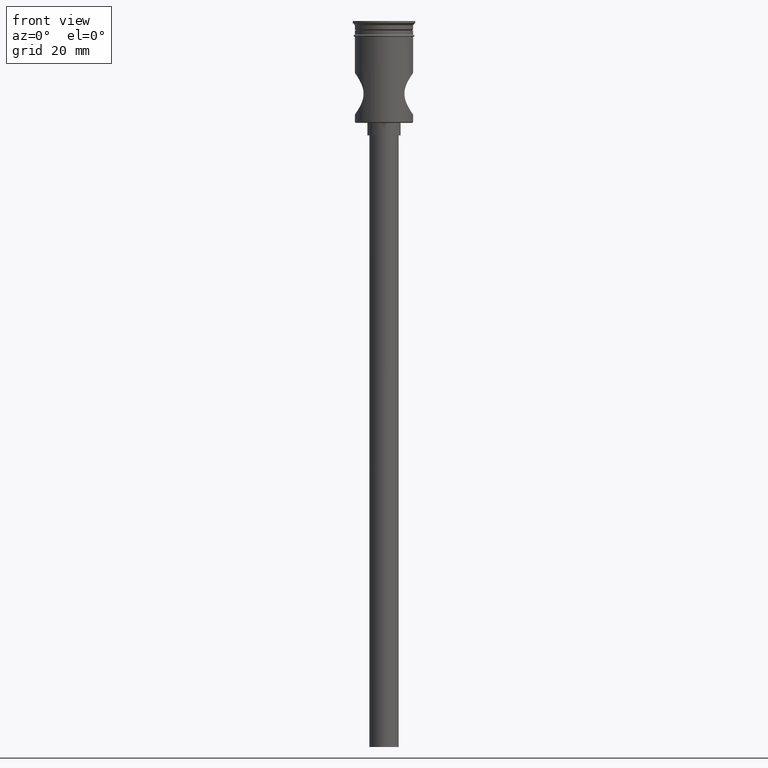
[diagram: clean part render]
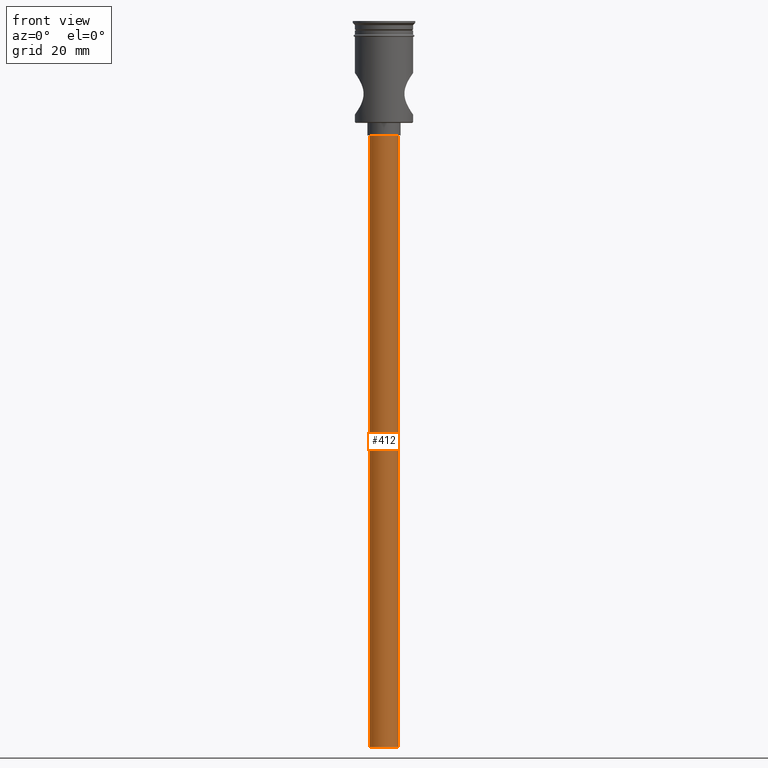
[diagram: same view with one face highlighted and labeled with its STEP entity id]
A machine part, front view. The second image highlights one B-rep face of the part: STEP entity #412.
In plain terms, the highlighted cylindrical surface (edge-blend (fillet) strip) has radius 3.5 mm, axis along (-0, -0, 1).
Its self-contained STEP definition (entity closure, byte-faithful):
#127 = CARTESIAN_POINT ( 'NONE',  ( -3.500000000000000444, 4.286263797015737088E-16, -174.5000000000000000 ) ) ;
#167 = CARTESIAN_POINT ( 'NONE',  ( -3.500000000000000444, 4.286263797015737088E-16, -174.5000000000000000 ) ) ;
#197 = DIRECTION ( 'NONE',  ( 0.000000000000000000, 0.000000000000000000, -1.000000000000000000 ) ) ;
#202 = LINE ( 'NONE', #167, #1262 ) ;
#259 = AXIS2_PLACEMENT_3D ( 'NONE', #1313, #869, #1213 ) ;
#385 = CYLINDRICAL_SURFACE ( 'NONE', #259, 3.500000000000000444 ) ;
#389 = CARTESIAN_POINT ( 'NONE',  ( 3.500000000000000444, 0.000000000000000000, -27.50000000000000000 ) ) ;
#412 = ADVANCED_FACE ( 'NONE', ( #1182 ), #385, .T. ) ;
#437 = EDGE_CURVE ( 'NONE', #819, #668, #452, .T. ) ;
#452 = CIRCLE ( 'NONE', #718, 3.500000000000000444 ) ;
#455 = VERTEX_POINT ( 'NONE', #758 ) ;
#461 = EDGE_CURVE ( 'NONE', #455, #819, #659, .T. ) ;
#471 = EDGE_CURVE ( 'NONE', #455, #1179, #478, .T. ) ;
#478 = CIRCLE ( 'NONE', #620, 3.500000000000000444 ) ;
#519 = DIRECTION ( 'NONE',  ( -0.000000000000000000, -0.000000000000000000, 1.000000000000000000 ) ) ;
#527 = DIRECTION ( 'NONE',  ( -1.000000000000000000, 0.000000000000000000, 0.000000000000000000 ) ) ;
#533 = CARTESIAN_POINT ( 'NONE',  ( 0.000000000000000000, 0.000000000000000000, -174.5000000000000000 ) ) ;
#620 = AXIS2_PLACEMENT_3D ( 'NONE', #533, #197, #967 ) ;
#659 = LINE ( 'NONE', #1423, #1289 ) ;
#668 = VERTEX_POINT ( 'NONE', #733 ) ;
#718 = AXIS2_PLACEMENT_3D ( 'NONE', #1332, #778, #527 ) ;
#733 = CARTESIAN_POINT ( 'NONE',  ( -3.500000000000000444, 4.286263797015737088E-16, -27.50000000000000000 ) ) ;
#734 = ORIENTED_EDGE ( 'NONE', *, *, #471, .F. ) ;
#758 = CARTESIAN_POINT ( 'NONE',  ( 3.500000000000000444, 0.000000000000000000, -174.5000000000000000 ) ) ;
#778 = DIRECTION ( 'NONE',  ( 0.000000000000000000, 0.000000000000000000, -1.000000000000000000 ) ) ;
#819 = VERTEX_POINT ( 'NONE', #389 ) ;
#825 = ORIENTED_EDGE ( 'NONE', *, *, #461, .T. ) ;
#869 = DIRECTION ( 'NONE',  ( -0.000000000000000000, -0.000000000000000000, 1.000000000000000000 ) ) ;
#967 = DIRECTION ( 'NONE',  ( -1.000000000000000000, 0.000000000000000000, 0.000000000000000000 ) ) ;
#1101 = ORIENTED_EDGE ( 'NONE', *, *, #437, .T. ) ;
#1106 = EDGE_LOOP ( 'NONE', ( #1485, #734, #825, #1101 ) ) ;
#1179 = VERTEX_POINT ( 'NONE', #127 ) ;
#1182 = FACE_OUTER_BOUND ( 'NONE', #1106, .T. ) ;
#1213 = DIRECTION ( 'NONE',  ( 1.000000000000000000, 0.000000000000000000, 0.000000000000000000 ) ) ;
#1226 = DIRECTION ( 'NONE',  ( -0.000000000000000000, -0.000000000000000000, 1.000000000000000000 ) ) ;
#1262 = VECTOR ( 'NONE', #519, 1000.000000000000000 ) ;
#1289 = VECTOR ( 'NONE', #1226, 1000.000000000000000 ) ;
#1313 = CARTESIAN_POINT ( 'NONE',  ( 0.000000000000000000, 0.000000000000000000, -174.5000000000000000 ) ) ;
#1332 = CARTESIAN_POINT ( 'NONE',  ( 0.000000000000000000, 0.000000000000000000, -27.50000000000000000 ) ) ;
#1395 = EDGE_CURVE ( 'NONE', #1179, #668, #202, .T. ) ;
#1423 = CARTESIAN_POINT ( 'NONE',  ( 3.500000000000000444, 0.000000000000000000, -174.5000000000000000 ) ) ;
#1485 = ORIENTED_EDGE ( 'NONE', *, *, #1395, .F. ) ;